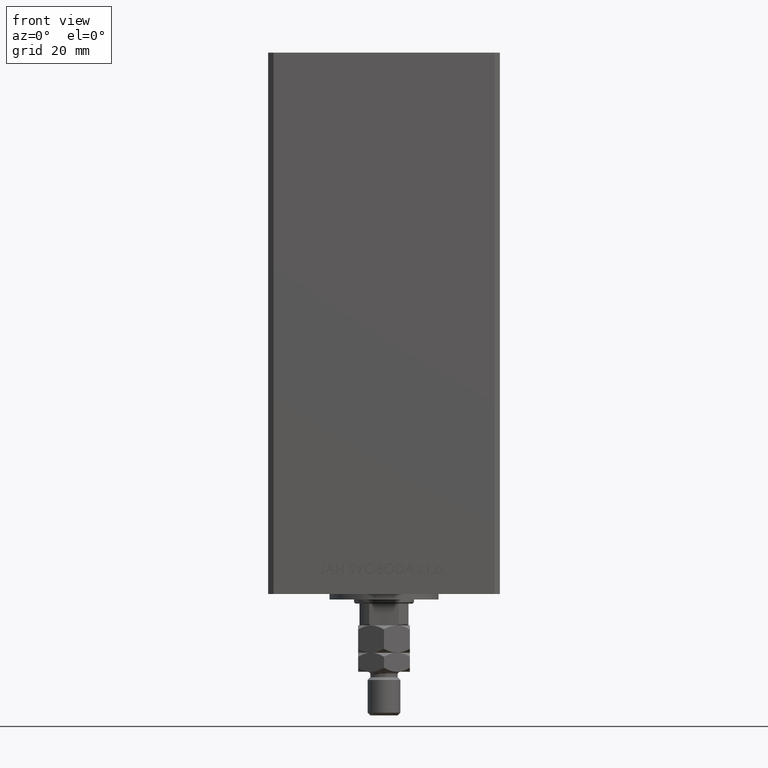
[diagram: clean part render]
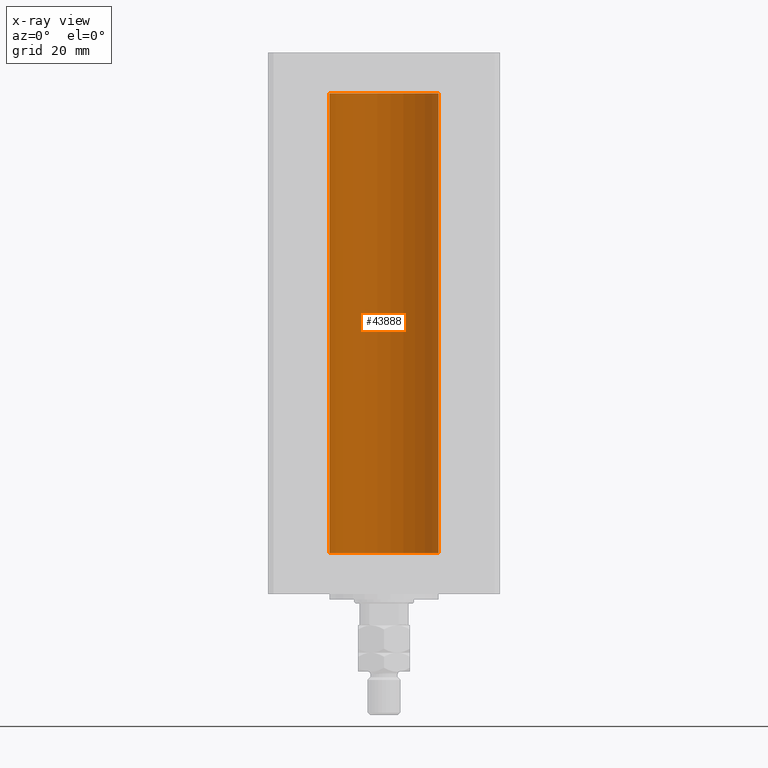
[diagram: x-ray — body ghosted, one internal face saturated and labeled with its STEP entity id]
A machine part, front view, then the same camera in x-ray: the body is ghosted and one INTERNAL B-rep face — a face not visible from any outside direction — is saturated and labeled: STEP entity #43888.
In plain terms, the highlighted cylindrical surface (partial cylindrical patch) has radius 20 mm, axis along (-0, -0, -1).
Its self-contained STEP definition (entity closure, byte-faithful):
#71 = DIRECTION ( 'NONE',  ( 1.000000000000000000, 0.000000000000000000, 0.000000000000000000 ) ) ;
#345 = CARTESIAN_POINT ( 'NONE',  ( 20.00000000000000000, 2.449293598294706513E-15, 168.5000000000000000 ) ) ;
#669 = EDGE_LOOP ( 'NONE', ( #1070, #3926, #5282, #7393 ) ) ;
#1070 = ORIENTED_EDGE ( 'NONE', *, *, #23595, .F. ) ;
#2412 = DIRECTION ( 'NONE',  ( -1.000000000000000000, 0.000000000000000000, 0.000000000000000000 ) ) ;
#3304 = EDGE_CURVE ( 'NONE', #22871, #19583, #41218, .T. ) ;
#3405 = CARTESIAN_POINT ( 'NONE',  ( -20.00000000000000000, 0.000000000000000000, 168.5000000000000000 ) ) ;
#3926 = ORIENTED_EDGE ( 'NONE', *, *, #37873, .T. ) ;
#4781 = CARTESIAN_POINT ( 'NONE',  ( 20.00000000000000000, 2.449293598294706513E-15, 168.5000000000000000 ) ) ;
#5282 = ORIENTED_EDGE ( 'NONE', *, *, #44647, .T. ) ;
#7393 = ORIENTED_EDGE ( 'NONE', *, *, #3304, .F. ) ;
#7467 = DIRECTION ( 'NONE',  ( -0.000000000000000000, 0.000000000000000000, 1.000000000000000000 ) ) ;
#7490 = LINE ( 'NONE', #345, #20704 ) ;
#10056 = CYLINDRICAL_SURFACE ( 'NONE', #48204, 20.00000000000000000 ) ;
#11834 = DIRECTION ( 'NONE',  ( -0.000000000000000000, -0.000000000000000000, -1.000000000000000000 ) ) ;
#12891 = AXIS2_PLACEMENT_3D ( 'NONE', #50034, #15025, #37561 ) ;
#14121 = CARTESIAN_POINT ( 'NONE',  ( 20.00000000000000000, 2.449293598294706513E-15, 0.000000000000000000 ) ) ;
#14405 = DIRECTION ( 'NONE',  ( -0.000000000000000000, -0.000000000000000000, -1.000000000000000000 ) ) ;
#15025 = DIRECTION ( 'NONE',  ( -0.000000000000000000, 0.000000000000000000, 1.000000000000000000 ) ) ;
#19583 = VERTEX_POINT ( 'NONE', #42337 ) ;
#20704 = VECTOR ( 'NONE', #11834, 1000.000000000000000 ) ;
#22871 = VERTEX_POINT ( 'NONE', #14121 ) ;
#23595 = EDGE_CURVE ( 'NONE', #31120, #22871, #7490, .T. ) ;
#24071 = AXIS2_PLACEMENT_3D ( 'NONE', #31506, #7467, #71 ) ;
#25646 = CARTESIAN_POINT ( 'NONE',  ( 0.000000000000000000, 0.000000000000000000, 168.5000000000000000 ) ) ;
#27040 = VECTOR ( 'NONE', #14405, 1000.000000000000000 ) ;
#31120 = VERTEX_POINT ( 'NONE', #4781 ) ;
#31506 = CARTESIAN_POINT ( 'NONE',  ( 0.000000000000000000, 0.000000000000000000, 0.000000000000000000 ) ) ;
#32712 = CARTESIAN_POINT ( 'NONE',  ( -20.00000000000000000, 0.000000000000000000, 168.5000000000000000 ) ) ;
#34557 = LINE ( 'NONE', #3405, #27040 ) ;
#37382 = CIRCLE ( 'NONE', #12891, 20.00000000000000000 ) ;
#37561 = DIRECTION ( 'NONE',  ( 1.000000000000000000, 0.000000000000000000, 0.000000000000000000 ) ) ;
#37873 = EDGE_CURVE ( 'NONE', #31120, #45211, #37382, .T. ) ;
#38147 = DIRECTION ( 'NONE',  ( -0.000000000000000000, -0.000000000000000000, -1.000000000000000000 ) ) ;
#41218 = CIRCLE ( 'NONE', #24071, 20.00000000000000000 ) ;
#42337 = CARTESIAN_POINT ( 'NONE',  ( -20.00000000000000000, 0.000000000000000000, 0.000000000000000000 ) ) ;
#43888 = ADVANCED_FACE ( 'NONE', ( #49658 ), #10056, .F. ) ;
#44647 = EDGE_CURVE ( 'NONE', #45211, #19583, #34557, .T. ) ;
#45211 = VERTEX_POINT ( 'NONE', #32712 ) ;
#48204 = AXIS2_PLACEMENT_3D ( 'NONE', #25646, #38147, #2412 ) ;
#49658 = FACE_OUTER_BOUND ( 'NONE', #669, .T. ) ;
#50034 = CARTESIAN_POINT ( 'NONE',  ( 0.000000000000000000, 0.000000000000000000, 168.5000000000000000 ) ) ;